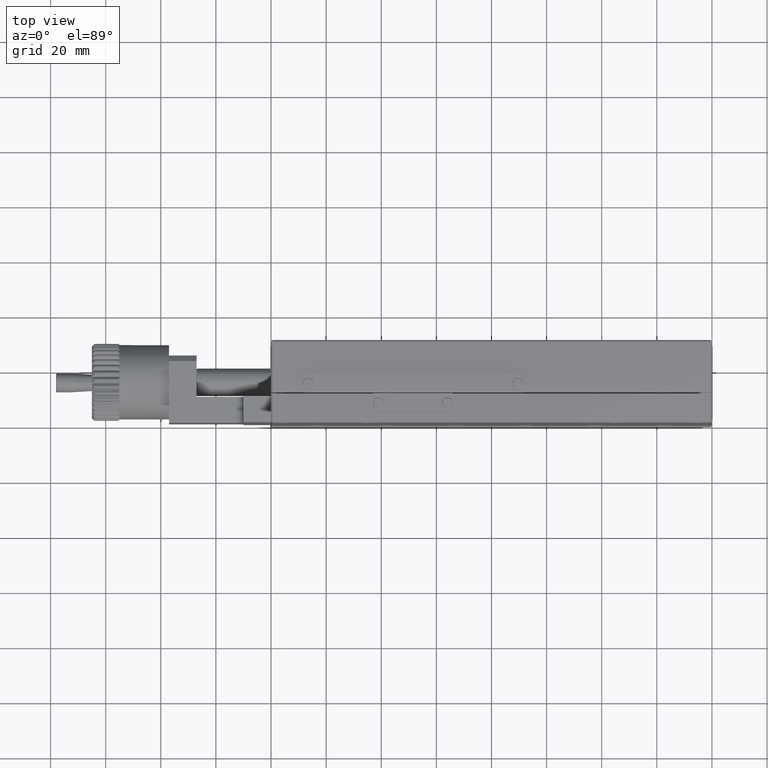
[diagram: clean part render]
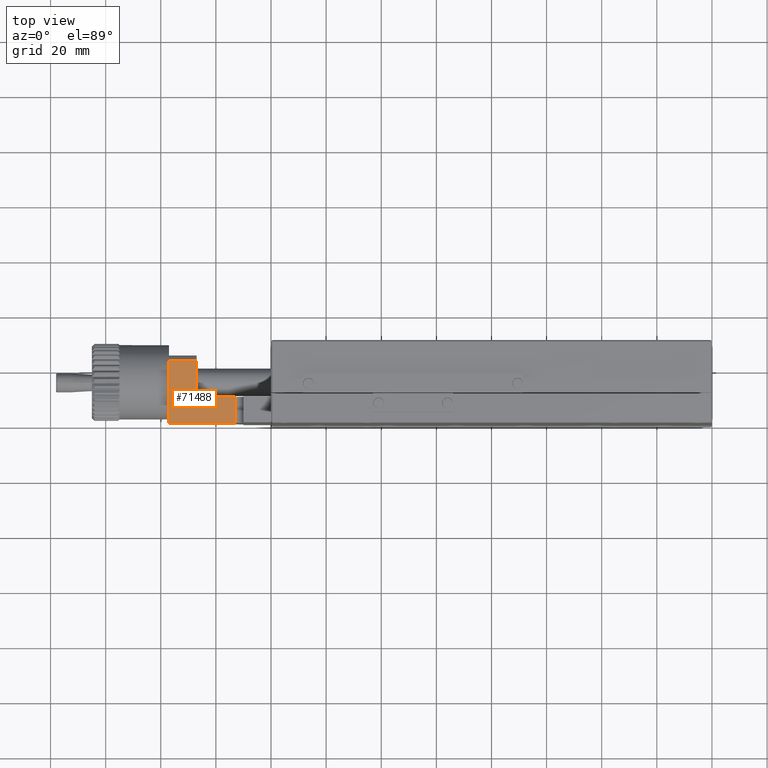
[diagram: same view with one face highlighted and labeled with its STEP entity id]
A machine part, top view. The second image highlights one B-rep face of the part: STEP entity #71488.
In plain terms, the highlighted planar face has unit normal (0, 0, -1).
Its self-contained STEP definition (entity closure, byte-faithful):
#396 = ORIENTED_EDGE ( 'NONE', *, *, #17675, .T. ) ;
#4542 = EDGE_CURVE ( 'NONE', #56278, #30898, #7954, .T. ) ;
#5106 = CARTESIAN_POINT ( 'NONE',  ( -196.9999999999999716, 23.00000000000000355, 15.50000000000000000 ) ) ;
#6451 = CARTESIAN_POINT ( 'NONE',  ( -186.9999999999999716, 23.00000000000000355, 15.50000000000000000 ) ) ;
#7234 = DIRECTION ( 'NONE',  ( 1.000000000000000000, -0.000000000000000000, 0.000000000000000000 ) ) ;
#7954 = LINE ( 'NONE', #68472, #43068 ) ;
#10566 = CARTESIAN_POINT ( 'NONE',  ( -173.0000000000000284, 10.00000000000000000, 15.49999999999998579 ) ) ;
#11742 = LINE ( 'NONE', #28993, #25379 ) ;
#14650 = DIRECTION ( 'NONE',  ( 0.000000000000000000, -1.000000000000000000, -0.000000000000000000 ) ) ;
#16049 = VERTEX_POINT ( 'NONE', #10566 ) ;
#16372 = CARTESIAN_POINT ( 'NONE',  ( -173.0000000000000284, 0.5000000000000004441, 15.49999999999998401 ) ) ;
#17675 = EDGE_CURVE ( 'NONE', #19835, #30850, #56661, .T. ) ;
#17787 = CARTESIAN_POINT ( 'NONE',  ( -173.0000000000000284, 0.5000000000000000000, 15.50000000000000000 ) ) ;
#17960 = DIRECTION ( 'NONE',  ( 1.000000000000000000, 0.000000000000000000, -0.000000000000000000 ) ) ;
#18103 = ORIENTED_EDGE ( 'NONE', *, *, #67006, .F. ) ;
#19281 = CARTESIAN_POINT ( 'NONE',  ( -186.9999999999999716, 10.00000000000000000, 15.50000000000000000 ) ) ;
#19835 = VERTEX_POINT ( 'NONE', #54474 ) ;
#20143 = EDGE_LOOP ( 'NONE', ( #57389, #24953, #396, #64882, #40010, #18103 ) ) ;
#20806 = LINE ( 'NONE', #43906, #26693 ) ;
#24953 = ORIENTED_EDGE ( 'NONE', *, *, #47855, .T. ) ;
#25379 = VECTOR ( 'NONE', #17960, 1000.000000000000000 ) ;
#25689 = LINE ( 'NONE', #40832, #34895 ) ;
#26403 = DIRECTION ( 'NONE',  ( -0.000000000000000000, -1.000000000000000000, -0.000000000000000000 ) ) ;
#26693 = VECTOR ( 'NONE', #59321, 1000.000000000000000 ) ;
#26936 = AXIS2_PLACEMENT_3D ( 'NONE', #34203, #63190, #40423 ) ;
#28993 = CARTESIAN_POINT ( 'NONE',  ( -160.0000000000000000, 10.00000000000000000, 15.50000000000000178 ) ) ;
#29796 = FACE_OUTER_BOUND ( 'NONE', #20143, .T. ) ;
#30850 = VERTEX_POINT ( 'NONE', #16372 ) ;
#30898 = VERTEX_POINT ( 'NONE', #6451 ) ;
#34203 = CARTESIAN_POINT ( 'NONE',  ( -197.0000000000000000, 25.00000000000000000, 15.50000000000000000 ) ) ;
#34895 = VECTOR ( 'NONE', #26403, 1000.000000000000000 ) ;
#40010 = ORIENTED_EDGE ( 'NONE', *, *, #65595, .F. ) ;
#40423 = DIRECTION ( 'NONE',  ( -1.000000000000000000, 0.000000000000000000, -0.000000000000000000 ) ) ;
#40832 = CARTESIAN_POINT ( 'NONE',  ( -187.0000000000000000, 25.00000000000000000, 15.50000000000000000 ) ) ;
#42257 = VERTEX_POINT ( 'NONE', #19281 ) ;
#43068 = VECTOR ( 'NONE', #7234, 1000.000000000000000 ) ;
#43906 = CARTESIAN_POINT ( 'NONE',  ( -173.0000000000000284, 25.00000000000000000, 15.49999999999996803 ) ) ;
#47855 = EDGE_CURVE ( 'NONE', #56278, #19835, #70446, .T. ) ;
#54474 = CARTESIAN_POINT ( 'NONE',  ( -196.9999999999999716, 0.5000000000000001110, 15.50000000000000000 ) ) ;
#56278 = VERTEX_POINT ( 'NONE', #5106 ) ;
#56661 = LINE ( 'NONE', #17787, #66797 ) ;
#57389 = ORIENTED_EDGE ( 'NONE', *, *, #4542, .F. ) ;
#59321 = DIRECTION ( 'NONE',  ( -0.000000000000000000, 1.000000000000000000, -0.000000000000000000 ) ) ;
#62194 = DIRECTION ( 'NONE',  ( 1.000000000000000000, 0.000000000000000000, -0.000000000000000000 ) ) ;
#63190 = DIRECTION ( 'NONE',  ( 0.000000000000000000, 0.000000000000000000, -1.000000000000000000 ) ) ;
#64573 = CARTESIAN_POINT ( 'NONE',  ( -197.0000000000000000, 25.00000000000000000, 15.50000000000000000 ) ) ;
#64882 = ORIENTED_EDGE ( 'NONE', *, *, #67369, .T. ) ;
#65595 = EDGE_CURVE ( 'NONE', #42257, #16049, #11742, .T. ) ;
#66797 = VECTOR ( 'NONE', #62194, 1000.000000000000000 ) ;
#67006 = EDGE_CURVE ( 'NONE', #30898, #42257, #25689, .T. ) ;
#67369 = EDGE_CURVE ( 'NONE', #30850, #16049, #20806, .T. ) ;
#68302 = PLANE ( 'NONE',  #26936 ) ;
#68472 = CARTESIAN_POINT ( 'NONE',  ( -197.0000000000000000, 23.00000000000000000, 15.50000000000000000 ) ) ;
#69081 = VECTOR ( 'NONE', #14650, 1000.000000000000000 ) ;
#70446 = LINE ( 'NONE', #64573, #69081 ) ;
#71488 = ADVANCED_FACE ( 'NONE', ( #29796 ), #68302, .F. ) ;